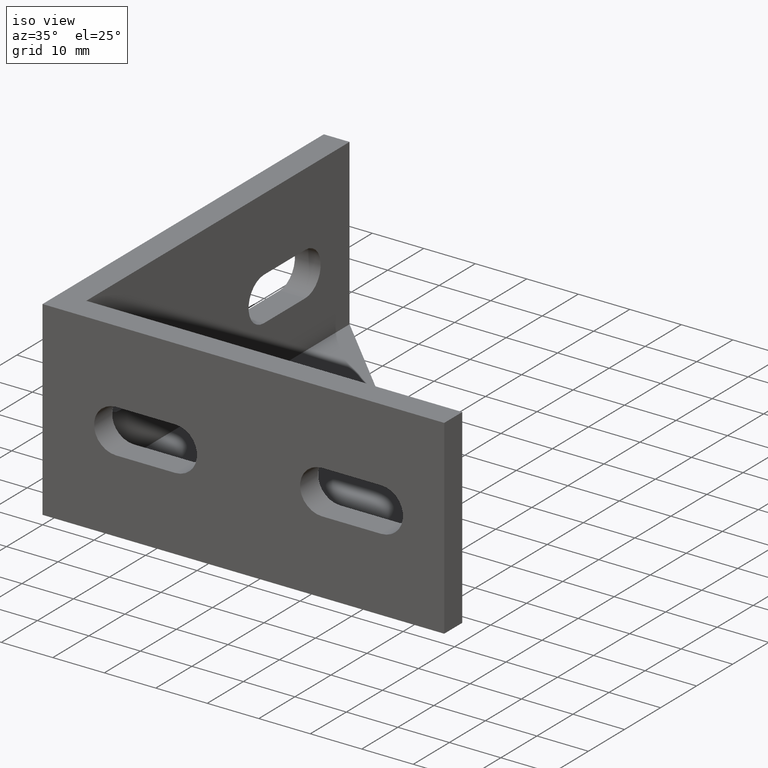
[diagram: clean part render]
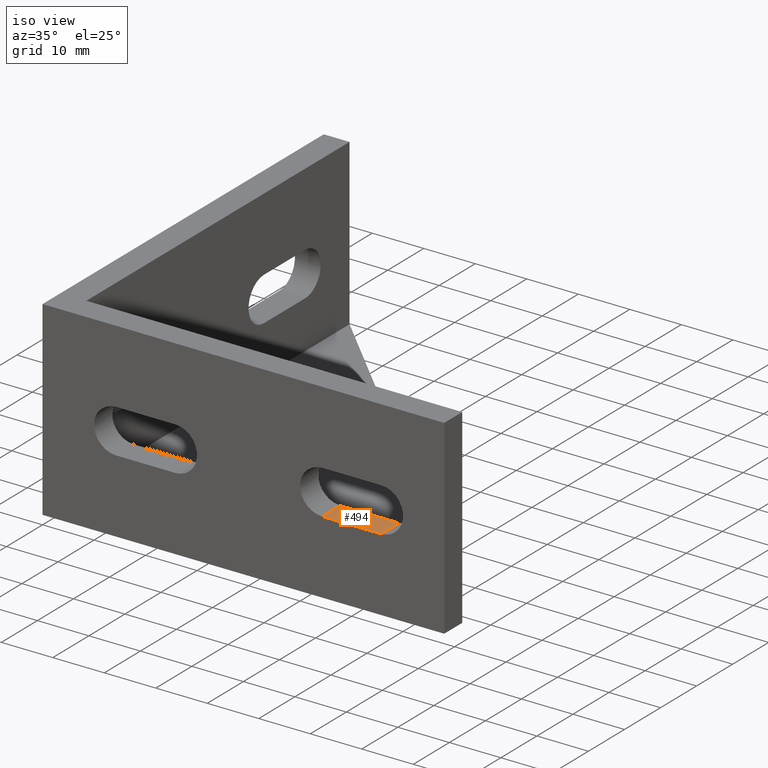
[diagram: same view with one face highlighted and labeled with its STEP entity id]
A machine part, iso view. The second image highlights one B-rep face of the part: STEP entity #494.
In plain terms, the highlighted planar face has unit normal (0, 0, -1).
Its self-contained STEP definition (entity closure, byte-faithful):
#25=PLANE('',#546);
#46=FACE_OUTER_BOUND('',#72,.T.);
#72=EDGE_LOOP('',(#361,#362,#363,#364));
#110=LINE('',#750,#164);
#111=LINE('',#753,#165);
#112=LINE('',#755,#166);
#113=LINE('',#756,#167);
#164=VECTOR('',#610,10.);
#165=VECTOR('',#613,10.);
#166=VECTOR('',#614,10.);
#167=VECTOR('',#615,10.);
#234=VERTEX_POINT('',#744);
#236=VERTEX_POINT('',#748);
#237=VERTEX_POINT('',#752);
#238=VERTEX_POINT('',#754);
#286=EDGE_CURVE('',#236,#234,#110,.T.);
#287=EDGE_CURVE('',#234,#237,#111,.T.);
#288=EDGE_CURVE('',#238,#236,#112,.T.);
#289=EDGE_CURVE('',#238,#237,#113,.T.);
#361=ORIENTED_EDGE('',*,*,#287,.F.);
#362=ORIENTED_EDGE('',*,*,#286,.F.);
#363=ORIENTED_EDGE('',*,*,#288,.F.);
#364=ORIENTED_EDGE('',*,*,#289,.T.);
#494=ADVANCED_FACE('',(#46),#25,.F.);
#546=AXIS2_PLACEMENT_3D('',#751,#611,#612);
#610=DIRECTION('',(0.,1.,0.));
#611=DIRECTION('center_axis',(0.,0.,-1.));
#612=DIRECTION('ref_axis',(-1.,0.,0.));
#613=DIRECTION('',(1.,0.,0.));
#614=DIRECTION('',(-1.,0.,0.));
#615=DIRECTION('',(0.,1.,0.));
#744=CARTESIAN_POINT('',(54.25,5.,-4.25));
#748=CARTESIAN_POINT('',(54.25,0.,-4.25));
#750=CARTESIAN_POINT('',(54.25,0.,-4.25));
#751=CARTESIAN_POINT('Origin',(65.75,0.,-4.25));
#752=CARTESIAN_POINT('',(65.75,5.,-4.25));
#753=CARTESIAN_POINT('',(71.875,5.,-4.25));
#754=CARTESIAN_POINT('',(65.75,0.,-4.25));
#755=CARTESIAN_POINT('',(32.875,0.,-4.25));
#756=CARTESIAN_POINT('',(65.75,0.,-4.25));